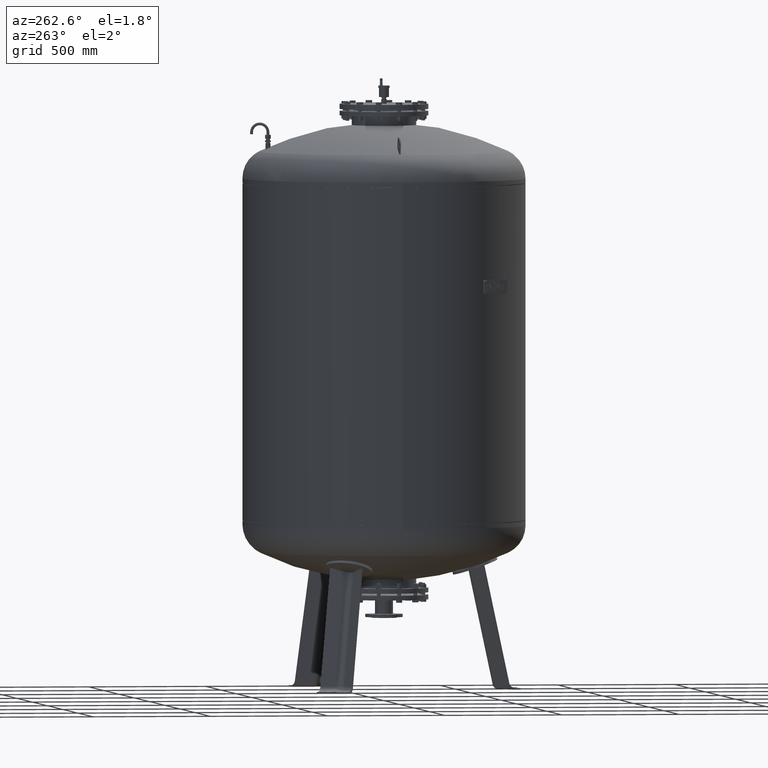
[diagram: clean part render]
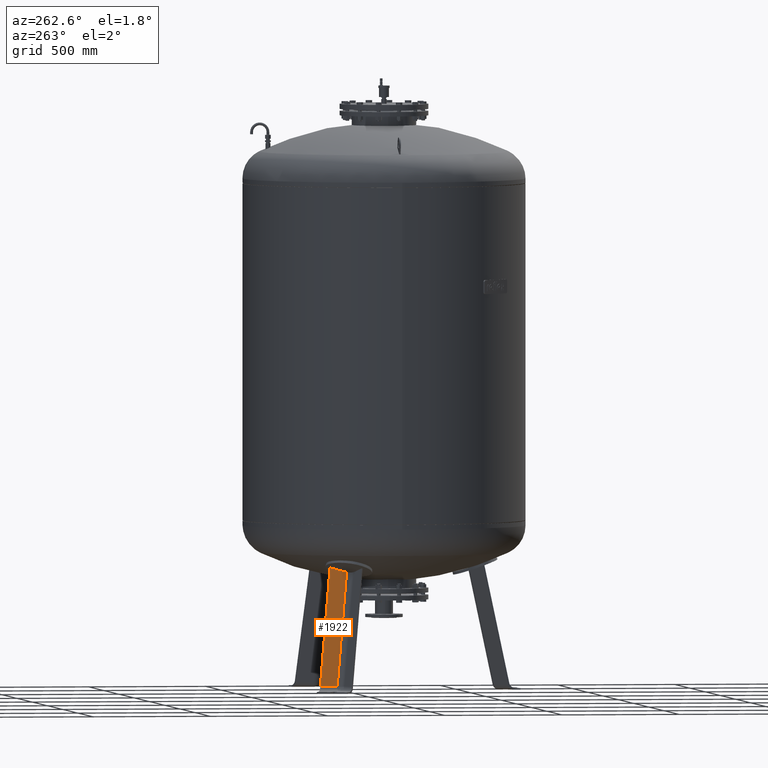
[diagram: same view with one face highlighted and labeled with its STEP entity id]
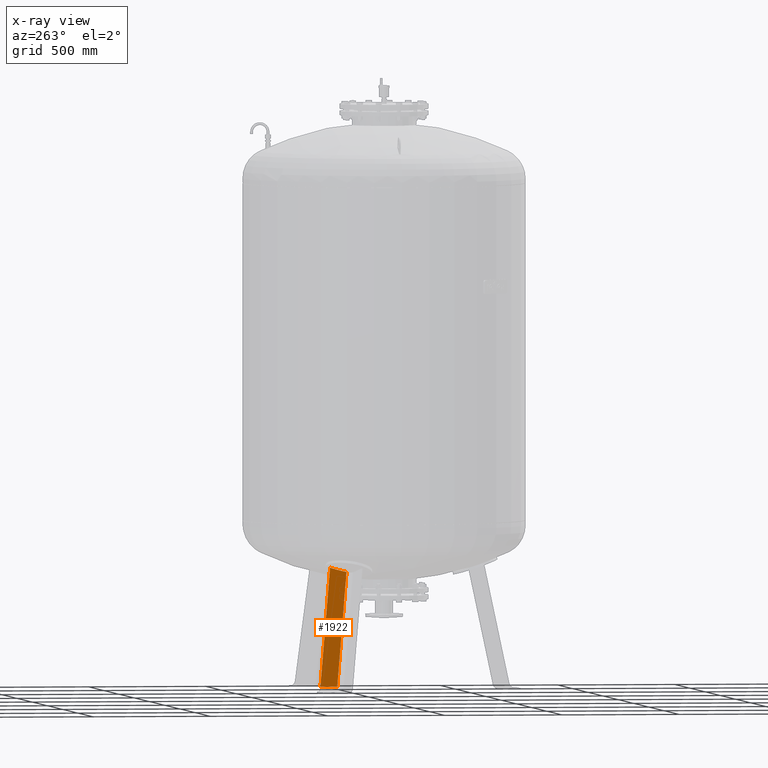
[diagram: x-ray of the same camera — body ghosted, the highlighted face saturated]
A machine part, auxiliary view. The second image highlights one B-rep face of the part: STEP entity #1922.
The next image is the same camera in x-ray: the body ghosted, the highlighted face saturated — about 0% of this face is hidden behind the body in this view.
In plain terms, the highlighted planar face has unit normal (-0.9697, -0.1854, 0.1588).
Its self-contained STEP definition (entity closure, byte-faithful):
#1173=CARTESIAN_POINT('',(-404.267871061775740,252.036932639186090,27.029948423057292));
#1174=VERTEX_POINT('',#1173);
#1506=CARTESIAN_POINT('',(-418.341095342265250,325.635267289667300,27.029948423057292));
#1507=VERTEX_POINT('',#1506);
#1508=CARTESIAN_POINT('',(-404.267871061775740,252.036932639186090,27.029948423057292));
#1509=DIRECTION('',(-0.187813845079450,0.982204642422582,0.0));
#1510=VECTOR('',#1509,74.931772333057637);
#1511=LINE('',#1508,#1510);
#1512=EDGE_CURVE('',#1174,#1507,#1511,.T.);
#1793=CARTESIAN_POINT('',(-326.337683684044410,272.517072802429480,526.832862714638170));
#1794=VERTEX_POINT('',#1793);
#1802=CARTESIAN_POINT('',(-315.671290026426850,200.885672729146850,508.325463444113210));
#1803=VERTEX_POINT('',#1802);
#1804=CARTESIAN_POINT('',(-122.338869528974440,18.628324987996479,1476.110567297756700));
#1805=DIRECTION('',(0.969740897595359,0.185430570007244,-0.158802063077709));
#1806=DIRECTION('',(0.180056805991956,-0.103955845408880,0.978147600733806));
#1807=AXIS2_PLACEMENT_3D('',#1804,#1805,#1806);
#1808=CIRCLE('',#1807,1003.595123972834800);
#1809=EDGE_CURVE('',#1803,#1794,#1808,.T.);
#1901=CARTESIAN_POINT('',(-409.201208147898230,236.252427676909260,-21.527282742766886));
#1902=DIRECTION('',(-0.969740897595359,-0.185430570007244,0.158802063077708));
#1903=DIRECTION('',(0.180056805991956,-0.103955845408880,0.978147600733806));
#1904=AXIS2_PLACEMENT_3D('',#1901,#1902,#1903);
#1905=PLANE('',#1904);
#1906=ORIENTED_EDGE('',*,*,#1809,.T.);
#1907=CARTESIAN_POINT('',(-418.341095342265250,325.635267289667300,27.029948423057292));
#1908=DIRECTION('',(0.180056805991956,-0.103955845408880,0.978147600733806));
#1909=VECTOR('',#1908,510.968808712130060);
#1910=LINE('',#1907,#1909);
#1911=EDGE_CURVE('',#1507,#1794,#1910,.T.);
#1912=ORIENTED_EDGE('',*,*,#1911,.F.);
#1913=ORIENTED_EDGE('',*,*,#1512,.F.);
#1914=CARTESIAN_POINT('',(-315.671290026426850,200.885672729146850,508.325463444113210));
#1915=DIRECTION('',(-0.180056805991956,0.103955845408880,-0.978147600733806));
#1916=VECTOR('',#1915,492.047943132496980);
#1917=LINE('',#1914,#1916);
#1918=EDGE_CURVE('',#1803,#1174,#1917,.T.);
#1919=ORIENTED_EDGE('',*,*,#1918,.F.);
#1920=EDGE_LOOP('',(#1906,#1912,#1913,#1919));
#1921=FACE_OUTER_BOUND('',#1920,.T.);
#1922=ADVANCED_FACE('',(#1921),#1905,.T.);